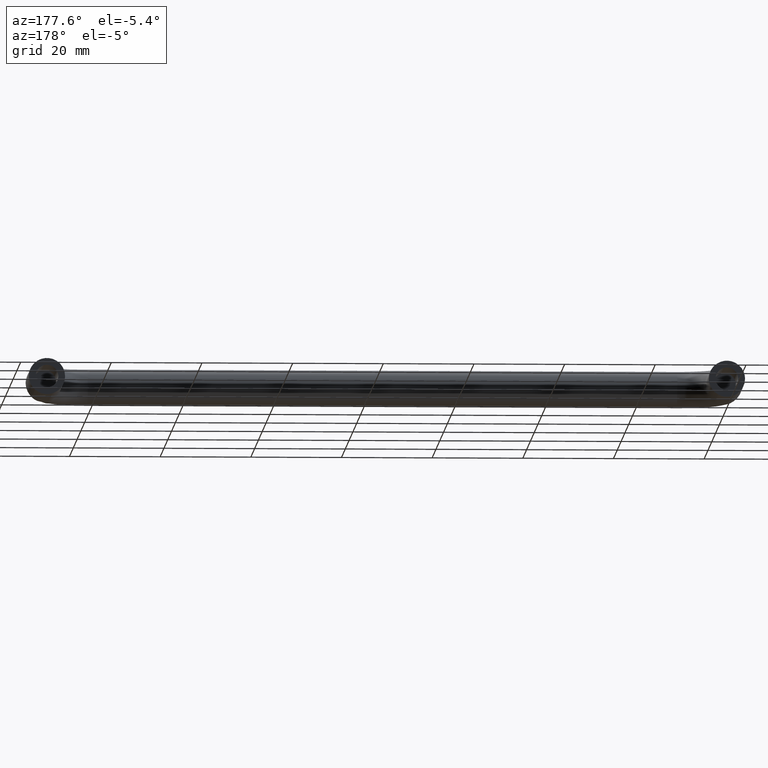
[diagram: clean part render]
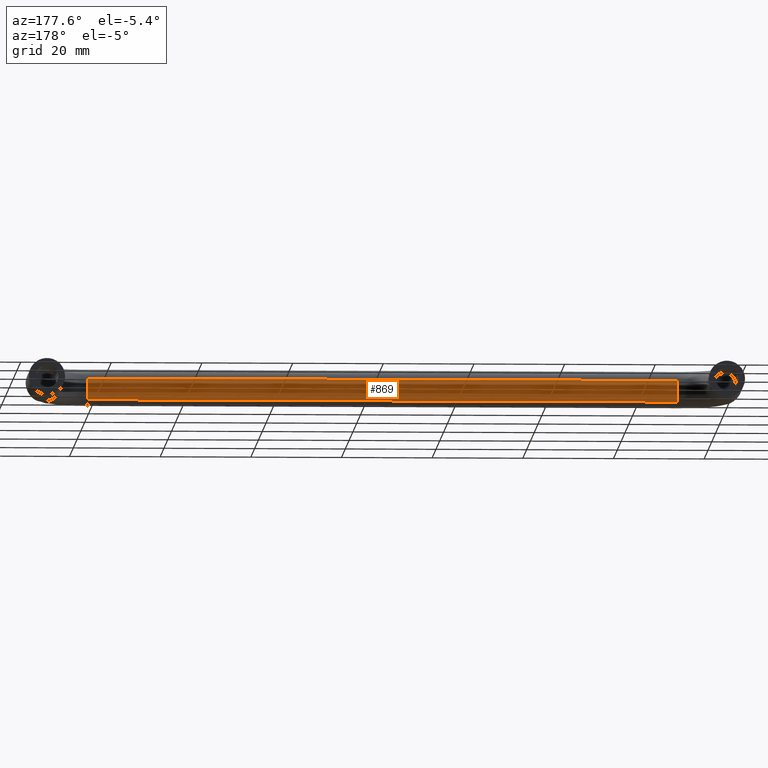
[diagram: same view with one face highlighted and labeled with its STEP entity id]
A machine part, auxiliary view. The second image highlights one B-rep face of the part: STEP entity #869.
In plain terms, the highlighted face is a freeform B-spline surface patch.
Its self-contained STEP definition (entity closure, byte-faithful):
#650=CARTESIAN_POINT('',(140.0,-23.417578029477610,1.779396758769257));
#651=VERTEX_POINT('',#650);
#669=CARTESIAN_POINT('',(9.999999999885187,-23.417578029538809,1.779396758739924));
#670=VERTEX_POINT('',#669);
#671=CARTESIAN_POINT('',(9.999999999885187,-23.417578029538809,1.779396758739924));
#672=CARTESIAN_POINT('',(140.0,-23.417578029477610,1.779396758769257));
#673=QUASI_UNIFORM_CURVE('',1,(#671,#672),.UNSPECIFIED.,.F.,.U.);
#674=EDGE_CURVE('',#670,#651,#673,.T.);
#723=CARTESIAN_POINT('',(10.0,-24.246582505429380,-2.901498251006061));
#724=VERTEX_POINT('',#723);
#740=CARTESIAN_POINT('',(140.000000000115700,-24.246582932973361,-2.901498656702296));
#741=VERTEX_POINT('',#740);
#742=CARTESIAN_POINT('',(10.0,-24.246582505429380,-2.901498251006061));
#743=CARTESIAN_POINT('',(140.000000000115700,-24.246582932973361,-2.901498656702296));
#744=QUASI_UNIFORM_CURVE('',1,(#742,#743),.UNSPECIFIED.,.F.,.U.);
#745=EDGE_CURVE('',#724,#741,#744,.T.);
#795=CARTESIAN_POINT('',(6.749999998630598,-24.246581697224990,-2.901497484049150));
#796=CARTESIAN_POINT('',(6.749999998630598,-22.102966599207015,-0.867282711355056));
#797=CARTESIAN_POINT('',(6.749999998630599,-23.417578029456681,1.779396758727104));
#798=CARTESIAN_POINT('',(143.331250010542190,-24.246581697224968,-2.901497484049150));
#799=CARTESIAN_POINT('',(143.331250010542220,-22.102966599207001,-0.867282711355056));
#800=CARTESIAN_POINT('',(143.331250010542190,-23.417578029456667,1.779396758727104));
#808=(BOUNDED_SURFACE()B_SPLINE_SURFACE(2,1,((#795,#798),(#796,#799),(#797,#800)),.UNSPECIFIED.,.F.,.F.,.U.)B_SPLINE_SURFACE_WITH_KNOTS((3,3),(2,2),(0.0,5.265794895546584),(0.0,136.581250011911610),.UNSPECIFIED.)GEOMETRIC_REPRESENTATION_ITEM()RATIONAL_B_SPLINE_SURFACE(((1.0,1.0),(0.765685424949238,0.765685424949238),(0.906274169979695,0.906274169979695)))REPRESENTATION_ITEM('')SURFACE());
#809=CARTESIAN_POINT('',(140.0,-23.0,0.0));
#810=VERTEX_POINT('',#809);
#811=CARTESIAN_POINT('',(140.0,-23.0,0.0));
#812=CARTESIAN_POINT('',(140.000000000000030,-23.000000000000004,0.938695717929676));
#813=CARTESIAN_POINT('',(139.999999999999940,-23.417578029477614,1.779396758769257));
#821=(BOUNDED_CURVE()B_SPLINE_CURVE(2,(#811,#812,#813),.UNSPECIFIED.,.F.,.U.)B_SPLINE_CURVE_WITH_KNOTS((3,3),(0.500000000000000,0.575619190626044),.UNSPECIFIED.)CURVE()GEOMETRIC_REPRESENTATION_ITEM()RATIONAL_B_SPLINE_CURVE((1.0,0.911406607413880,0.876408099965182))REPRESENTATION_ITEM(''));
#822=EDGE_CURVE('',#810,#651,#821,.T.);
#823=ORIENTED_EDGE('',*,*,#822,.F.);
#824=CARTESIAN_POINT('',(140.000000000115760,-24.246582932973364,-2.901498656702296));
#825=CARTESIAN_POINT('',(139.999999999999970,-23.0,-1.718536632860814));
#826=CARTESIAN_POINT('',(140.0,-23.0,0.0));
#834=(BOUNDED_CURVE()B_SPLINE_CURVE(2,(#824,#825,#826),.UNSPECIFIED.,.F.,.U.)B_SPLINE_CURVE_WITH_KNOTS((3,3),(0.371049462387032,0.500000000000000),.UNSPECIFIED.)CURVE()GEOMETRIC_REPRESENTATION_ITEM()RATIONAL_B_SPLINE_CURVE((0.853699666128967,0.848925047883251,1.0))REPRESENTATION_ITEM(''));
#835=EDGE_CURVE('',#741,#810,#834,.T.);
#836=ORIENTED_EDGE('',*,*,#835,.F.);
#837=ORIENTED_EDGE('',*,*,#745,.F.);
#838=CARTESIAN_POINT('',(10.0,-23.0,0.0));
#839=VERTEX_POINT('',#838);
#840=CARTESIAN_POINT('',(10.0,-24.246582505429377,-2.901498251006062));
#841=CARTESIAN_POINT('',(10.0,-23.0,-1.718536283793368));
#842=CARTESIAN_POINT('',(10.0,-23.0,0.0));
#850=(BOUNDED_CURVE()B_SPLINE_CURVE(2,(#840,#841,#842),.UNSPECIFIED.,.F.,.U.)B_SPLINE_CURVE_WITH_KNOTS((3,3),(0.371049484622336,0.500000000000000),.UNSPECIFIED.)CURVE()GEOMETRIC_REPRESENTATION_ITEM()RATIONAL_B_SPLINE_CURVE((0.853699664482370,0.848925073933530,1.0))REPRESENTATION_ITEM(''));
#851=EDGE_CURVE('',#724,#839,#850,.T.);
#852=ORIENTED_EDGE('',*,*,#851,.T.);
#853=CARTESIAN_POINT('',(10.0,-23.0,0.0));
#854=CARTESIAN_POINT('',(10.0,-23.000000000000004,0.938695717893990));
#855=CARTESIAN_POINT('',(9.999999999885187,-23.417578029538817,1.779396758739924));
#863=(BOUNDED_CURVE()B_SPLINE_CURVE(2,(#853,#854,#855),.UNSPECIFIED.,.F.,.U.)B_SPLINE_CURVE_WITH_KNOTS((3,3),(0.500000000000000,0.575619190623424),.UNSPECIFIED.)CURVE()GEOMETRIC_REPRESENTATION_ITEM()RATIONAL_B_SPLINE_CURVE((1.0,0.911406607416949,0.876408099967607))REPRESENTATION_ITEM(''));
#864=EDGE_CURVE('',#839,#670,#863,.T.);
#865=ORIENTED_EDGE('',*,*,#864,.T.);
#866=ORIENTED_EDGE('',*,*,#674,.T.);
#867=EDGE_LOOP('',(#823,#836,#837,#852,#865,#866));
#868=FACE_OUTER_BOUND('',#867,.T.);
#869=ADVANCED_FACE('',(#868),#808,.T.);